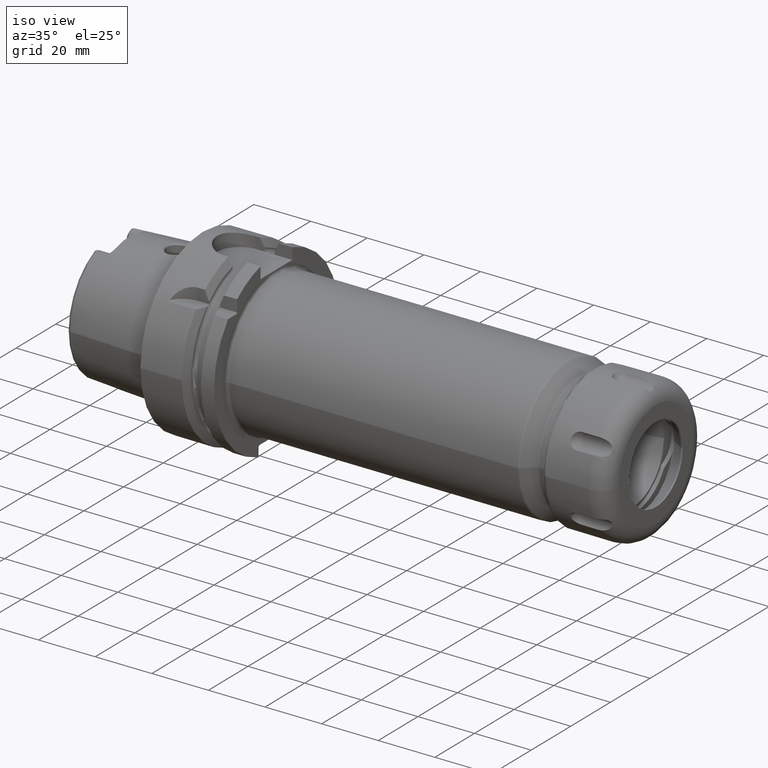
[diagram: clean part render]
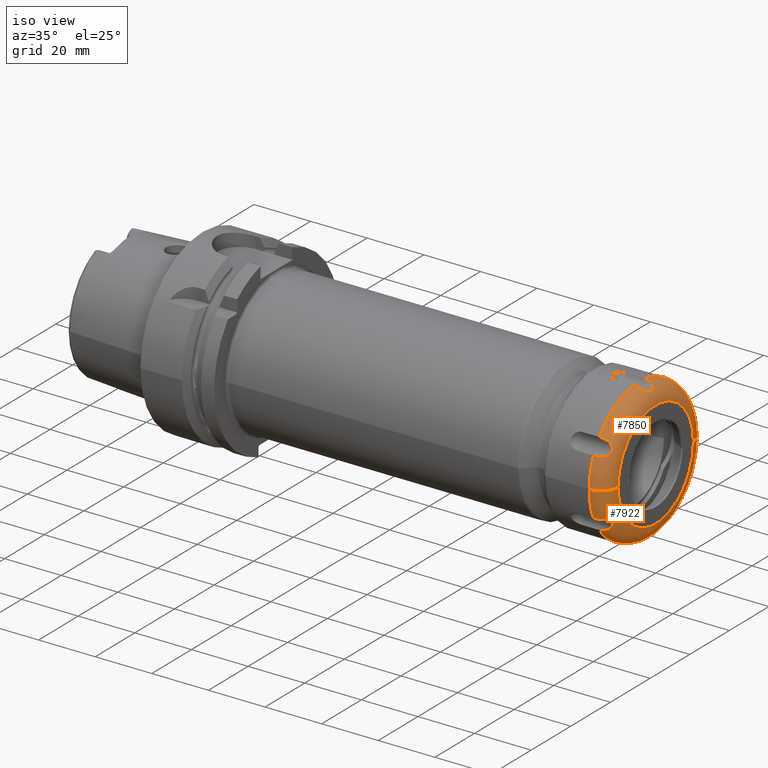
[diagram: same view with one multi-face feature highlighted, each face labeled with its STEP entity id]
A machine part, iso view. The highlighted faces form ONE feature: a constant-radius fillet chain: 2 tangent blend faces with common blend radius 6 mm. The faces share edges in the B-rep.
Their STEP definitions:
[1] entity #7922 (Torus):
#6672=CARTESIAN_POINT('',(1.65E1,1.9E1,0.E0));
#6673=DIRECTION('',(0.E0,0.E0,1.E0));
#6674=DIRECTION('',(1.E0,0.E0,0.E0));
#6675=AXIS2_PLACEMENT_3D('',#6672,#6673,#6674);
#6682=CARTESIAN_POINT('',(1.65E1,-1.9E1,0.E0));
#6683=DIRECTION('',(0.E0,0.E0,-1.E0));
#6684=DIRECTION('',(1.E0,0.E0,0.E0));
#6685=AXIS2_PLACEMENT_3D('',#6682,#6683,#6684);
#6779=CARTESIAN_POINT('',(2.25E1,0.E0,0.E0));
#6780=DIRECTION('',(-1.E0,0.E0,0.E0));
#6781=DIRECTION('',(0.E0,1.E0,0.E0));
#6782=AXIS2_PLACEMENT_3D('',#6779,#6780,#6781);
#6784=CARTESIAN_POINT('',(1.65E1,-2.290985507097E1,-1.000692463383E1));
#6785=CARTESIAN_POINT('',(1.694723275951E1,-2.290985507097E1,
-1.000692463383E1));
#6786=CARTESIAN_POINT('',(1.777273686532E1,-2.280971519412E1,
-9.990413347569E0));
#6787=CARTESIAN_POINT('',(1.880906674721E1,-2.245689672418E1,
-9.964959800532E0));
#6788=CARTESIAN_POINT('',(1.963305973257E1,-2.197150264562E1,
-1.000123426491E1));
#6789=CARTESIAN_POINT('',(2.024791780451E1,-2.142093508083E1,
-1.014493191317E1));
#6790=CARTESIAN_POINT('',(2.066023413901E1,-2.088267487226E1,
-1.040837966879E1));
#6791=CARTESIAN_POINT('',(2.090398272661E1,-2.041467150765E1,
-1.076644635425E1));
#6792=CARTESIAN_POINT('',(2.102168107365E1,-2.001959095990E1,
-1.121448387238E1));
#6793=CARTESIAN_POINT('',(2.102095170479E1,-1.971884963615E1,
-1.173687630992E1));
#6794=CARTESIAN_POINT('',(2.090187643971E1,-1.952968219076E1,
-1.230343942106E1));
#6795=CARTESIAN_POINT('',(2.065580889336E1,-1.945504186870E1,
-1.288887827158E1));
#6796=CARTESIAN_POINT('',(2.024233450265E1,-1.949742910517E1,
-1.348469612162E1));
#6797=CARTESIAN_POINT('',(1.962716159831E1,-1.964864834024E1,
-1.403114251544E1));
#6798=CARTESIAN_POINT('',(1.880413136422E1,-1.985945595620E1,
-1.446749790272E1));
#6799=CARTESIAN_POINT('',(1.776997637896E1,-2.005709122247E1,
-1.475891696091E1));
#6800=CARTESIAN_POINT('',(1.694623232374E1,-2.012117848214E1,
-1.483705417156E1));
#6801=CARTESIAN_POINT('',(1.65E1,-2.012117848214E1,-1.483705417156E1));
#6811=CARTESIAN_POINT('',(1.65E1,0.E0,0.E0));
#6812=DIRECTION('',(-1.E0,0.E0,0.E0));
#6813=DIRECTION('',(0.E0,-1.115470635532E-1,-9.937591522158E-1));
#6814=AXIS2_PLACEMENT_3D('',#6811,#6812,#6813);
#6824=CARTESIAN_POINT('',(1.65E1,0.E0,0.E0));
#6825=DIRECTION('',(-1.E0,0.E0,0.E0));
#6826=DIRECTION('',(0.E0,8.048471392856E-1,-5.934821668625E-1));
#6827=AXIS2_PLACEMENT_3D('',#6824,#6825,#6826);
#6837=CARTESIAN_POINT('',(1.65E1,0.E0,0.E0));
#6838=DIRECTION('',(-1.E0,0.E0,0.E0));
#6839=DIRECTION('',(0.E0,1.E0,0.E0));
#6840=AXIS2_PLACEMENT_3D('',#6837,#6838,#6839);
#6842=CARTESIAN_POINT('',(1.65E1,0.E0,0.E0));
#6843=DIRECTION('',(-1.E0,0.E0,0.E0));
#6844=DIRECTION('',(0.E0,-9.163942028388E-1,-4.002769853533E-1));
#6845=AXIS2_PLACEMENT_3D('',#6842,#6843,#6844);
#6874=CARTESIAN_POINT('',(1.65E1,-2.788676588829E0,-2.484397880539E1));
#6875=CARTESIAN_POINT('',(1.694694754131E1,-2.788676588829E0,
-2.484397880539E1));
#6876=CARTESIAN_POINT('',(1.777198007116E1,-2.752943205589E0,
-2.474911021453E1));
#6877=CARTESIAN_POINT('',(1.880771896592E1,-2.598811539784E0,
-2.443123011097E1));
#6878=CARTESIAN_POINT('',(1.963176734723E1,-2.325018135834E0,
-2.402923896364E1));
#6879=CARTESIAN_POINT('',(2.024696892663E1,-1.925560273791E0,
-2.362424975475E1));
#6880=CARTESIAN_POINT('',(2.065976563048E1,-1.428231673506E0,
-2.328953614277E1));
#6881=CARTESIAN_POINT('',(2.090378550494E1,-8.839996782707E-1,
-2.306304098867E1));
#6882=CARTESIAN_POINT('',(2.102164431311E1,-2.982640542416E-1,
-2.294475429858E1));
#6883=CARTESIAN_POINT('',(2.102100109149E1,3.046780383890E-1,
-2.294541333181E1));
#6884=CARTESIAN_POINT('',(2.090191025403E1,8.901354013608E-1,
-2.306488534693E1));
#6885=CARTESIAN_POINT('',(2.065592748228E1,1.434427559113E0,-2.329290182320E1));
#6886=CARTESIAN_POINT('',(2.024207145380E1,1.929692523839E0,-2.362783432082E1));
#6887=CARTESIAN_POINT('',(1.962632472305E1,2.327415036802E0,-2.403230056670E1));
#6888=CARTESIAN_POINT('',(1.880301628675E1,2.599720971572E0,-2.443296598778E1));
#6889=CARTESIAN_POINT('',(1.776936990180E1,2.753079224328E0,-2.474949496109E1));
#6890=CARTESIAN_POINT('',(1.694599708003E1,2.788676588829E0,-2.484397880539E1));
#6891=CARTESIAN_POINT('',(1.65E1,2.788676588829E0,-2.484397880539E1));
#6920=CARTESIAN_POINT('',(1.65E1,2.012117848214E1,-1.483705417156E1));
#6921=CARTESIAN_POINT('',(1.694708856491E1,2.012117848214E1,-1.483705417156E1));
#6922=CARTESIAN_POINT('',(1.777236287507E1,2.005685110167E1,-1.475863577517E1));
#6923=CARTESIAN_POINT('',(1.880853425709E1,1.985847743238E1,-1.446595958018E1));
#6924=CARTESIAN_POINT('',(1.963251451616E1,1.964722137305E1,-1.402762578400E1));
#6925=CARTESIAN_POINT('',(2.024747710348E1,1.949632115603E1,-1.347912009229E1));
#6926=CARTESIAN_POINT('',(2.066003894181E1,1.945524023858E1,-1.288111988149E1));
#6927=CARTESIAN_POINT('',(2.090387423337E1,1.953126705805E1,-1.229675839468E1));
#6928=CARTESIAN_POINT('',(2.102165433062E1,1.972169964466E1,-1.173050220689E1));
#6929=CARTESIAN_POINT('',(2.102098683850E1,2.002367806744E1,-1.120882785331E1));
#6930=CARTESIAN_POINT('',(2.090193711942E1,2.041975743808E1,-1.076165852656E1));
#6931=CARTESIAN_POINT('',(2.065607652062E1,2.088920438665E1,-1.040436975402E1));
#6932=CARTESIAN_POINT('',(2.024242898343E1,2.142675562221E1,-1.014290308878E1));
#6933=CARTESIAN_POINT('',(1.962683553388E1,2.197591842393E1,-1.000060537989E1));
#6934=CARTESIAN_POINT('',(1.880356314615E1,2.245919882776E1,-9.965050715289E0));
#6935=CARTESIAN_POINT('',(1.776963548014E1,2.281019487193E1,-9.990502811027E0));
#6936=CARTESIAN_POINT('',(1.694609518650E1,2.290985507097E1,-1.000692463383E1));
#6937=CARTESIAN_POINT('',(1.65E1,2.290985507097E1,-1.000692463383E1));
#7561=CARTESIAN_POINT('',(2.25E1,1.9E1,0.E0));
#7562=CARTESIAN_POINT('',(1.65E1,2.5E1,0.E0));
#7563=VERTEX_POINT('',#7561);
#7564=VERTEX_POINT('',#7562);
#7571=CARTESIAN_POINT('',(2.25E1,-1.9E1,0.E0));
#7572=CARTESIAN_POINT('',(1.65E1,-2.5E1,0.E0));
#7573=VERTEX_POINT('',#7571);
#7574=VERTEX_POINT('',#7572);
#7575=CARTESIAN_POINT('',(1.65E1,-2.788676588829E0,-2.484397880539E1));
#7577=VERTEX_POINT('',#7575);
#7579=CARTESIAN_POINT('',(1.65E1,2.788676588829E0,-2.484397880539E1));
#7581=VERTEX_POINT('',#7579);
#7583=CARTESIAN_POINT('',(1.65E1,2.012117848214E1,-1.483705417156E1));
#7585=VERTEX_POINT('',#7583);
#7587=CARTESIAN_POINT('',(1.65E1,2.290985507097E1,-1.000692463383E1));
#7589=VERTEX_POINT('',#7587);
#7615=CARTESIAN_POINT('',(1.65E1,-2.290985507097E1,-1.000692463383E1));
#7617=VERTEX_POINT('',#7615);
#7619=CARTESIAN_POINT('',(1.65E1,-2.012117848214E1,-1.483705417156E1));
#7621=VERTEX_POINT('',#7619);
#7897=CARTESIAN_POINT('',(1.65E1,0.E0,0.E0));
#7898=DIRECTION('',(-1.E0,0.E0,0.E0));
#7899=DIRECTION('',(0.E0,1.E0,0.E0));
#7900=AXIS2_PLACEMENT_3D('',#7897,#7898,#7899);
#7901=TOROIDAL_SURFACE('',#7900,1.9E1,6.E0);
#7903=ORIENTED_EDGE('',*,*,#7902,.F.);
#7905=ORIENTED_EDGE('',*,*,#7904,.T.);
#7906=ORIENTED_EDGE('',*,*,#7845,.F.);
#7908=ORIENTED_EDGE('',*,*,#7907,.F.);
#7909=ORIENTED_EDGE('',*,*,#7841,.T.);
#7911=ORIENTED_EDGE('',*,*,#7910,.T.);
#7913=ORIENTED_EDGE('',*,*,#7912,.F.);
#7915=ORIENTED_EDGE('',*,*,#7914,.T.);
#7917=ORIENTED_EDGE('',*,*,#7916,.F.);
#7919=ORIENTED_EDGE('',*,*,#7918,.T.);
#7920=EDGE_LOOP('',(#7903,#7905,#7906,#7908,#7909,#7911,#7913,#7915,#7917,
#7919));
#7921=FACE_OUTER_BOUND('',#7920,.F.);
#7922=ADVANCED_FACE('',(#7921),#7901,.T.);
#6676=CIRCLE('',#6675,6.E0);
#6686=CIRCLE('',#6685,6.E0);
#6783=CIRCLE('',#6782,1.9E1);
#6802=B_SPLINE_CURVE_WITH_KNOTS('',3,(#6784,#6785,#6786,#6787,#6788,#6789,#6790,
#6791,#6792,#6793,#6794,#6795,#6796,#6797,#6798,#6799,#6800,#6801),
.UNSPECIFIED.,.F.,.F.,(4,1,1,1,1,1,1,1,1,1,1,1,1,1,1,4),(0.E0,6.666666666667E-2,
1.333333333333E-1,2.E-1,2.666666666667E-1,3.333333333333E-1,4.E-1,
4.666666666667E-1,5.333333333333E-1,6.E-1,6.666666666667E-1,7.333333333333E-1,
8.E-1,8.666666666667E-1,9.333333333333E-1,1.E0),.UNSPECIFIED.);
#6815=CIRCLE('',#6814,2.5E1);
#6828=CIRCLE('',#6827,2.5E1);
#6841=CIRCLE('',#6840,2.5E1);
#6846=CIRCLE('',#6845,2.5E1);
#6892=B_SPLINE_CURVE_WITH_KNOTS('',3,(#6874,#6875,#6876,#6877,#6878,#6879,#6880,
#6881,#6882,#6883,#6884,#6885,#6886,#6887,#6888,#6889,#6890,#6891),
.UNSPECIFIED.,.F.,.F.,(4,1,1,1,1,1,1,1,1,1,1,1,1,1,1,4),(0.E0,6.666666666667E-2,
1.333333333333E-1,2.E-1,2.666666666667E-1,3.333333333333E-1,4.E-1,
4.666666666667E-1,5.333333333333E-1,6.E-1,6.666666666667E-1,7.333333333333E-1,
8.E-1,8.666666666667E-1,9.333333333333E-1,1.E0),.UNSPECIFIED.);
#6938=B_SPLINE_CURVE_WITH_KNOTS('',3,(#6920,#6921,#6922,#6923,#6924,#6925,#6926,
#6927,#6928,#6929,#6930,#6931,#6932,#6933,#6934,#6935,#6936,#6937),
.UNSPECIFIED.,.F.,.F.,(4,1,1,1,1,1,1,1,1,1,1,1,1,1,1,4),(0.E0,6.666666666667E-2,
1.333333333333E-1,2.E-1,2.666666666667E-1,3.333333333333E-1,4.E-1,
4.666666666667E-1,5.333333333333E-1,6.E-1,6.666666666667E-1,7.333333333333E-1,
8.E-1,8.666666666667E-1,9.333333333333E-1,1.E0),.UNSPECIFIED.);
#7841=EDGE_CURVE('',#7563,#7564,#6676,.T.);
#7845=EDGE_CURVE('',#7573,#7574,#6686,.T.);
#7902=EDGE_CURVE('',#7617,#7621,#6802,.T.);
#7904=EDGE_CURVE('',#7617,#7574,#6846,.T.);
#7907=EDGE_CURVE('',#7563,#7573,#6783,.T.);
#7910=EDGE_CURVE('',#7564,#7589,#6841,.T.);
#7912=EDGE_CURVE('',#7585,#7589,#6938,.T.);
#7914=EDGE_CURVE('',#7585,#7581,#6828,.T.);
#7916=EDGE_CURVE('',#7577,#7581,#6892,.T.);
#7918=EDGE_CURVE('',#7577,#7621,#6815,.T.);
[2] entity #7850 (Torus):
#6609=CARTESIAN_POINT('',(1.65E1,0.E0,0.E0));
#6610=DIRECTION('',(1.E0,0.E0,0.E0));
#6611=DIRECTION('',(0.E0,-9.163942028388E-1,4.002769853533E-1));
#6612=AXIS2_PLACEMENT_3D('',#6609,#6610,#6611);
#6622=CARTESIAN_POINT('',(1.65E1,0.E0,0.E0));
#6623=DIRECTION('',(1.E0,0.E0,0.E0));
#6624=DIRECTION('',(0.E0,1.E0,0.E0));
#6625=AXIS2_PLACEMENT_3D('',#6622,#6623,#6624);
#6635=CARTESIAN_POINT('',(1.65E1,0.E0,0.E0));
#6636=DIRECTION('',(1.E0,0.E0,0.E0));
#6637=DIRECTION('',(0.E0,8.048471392856E-1,5.934821668625E-1));
#6638=AXIS2_PLACEMENT_3D('',#6635,#6636,#6637);
#6648=CARTESIAN_POINT('',(1.65E1,0.E0,0.E0));
#6649=DIRECTION('',(1.E0,0.E0,0.E0));
#6650=DIRECTION('',(0.E0,-1.115470635532E-1,9.937591522158E-1));
#6651=AXIS2_PLACEMENT_3D('',#6648,#6649,#6650);
#6653=CARTESIAN_POINT('',(1.65E1,-2.012117848214E1,1.483705417156E1));
#6654=CARTESIAN_POINT('',(1.694720373027E1,-2.012117848214E1,1.483705417156E1));
#6655=CARTESIAN_POINT('',(1.777266753503E1,-2.005682040911E1,1.475860131025E1));
#6656=CARTESIAN_POINT('',(1.880909079501E1,-1.985835199326E1,1.446575721201E1));
#6657=CARTESIAN_POINT('',(1.963302422172E1,-1.964708392773E1,1.402727431065E1));
#6658=CARTESIAN_POINT('',(2.024782154650E1,-1.949625628860E1,1.347871288199E1));
#6659=CARTESIAN_POINT('',(2.066017174164E1,-1.945525930865E1,1.288084481345E1));
#6660=CARTESIAN_POINT('',(2.090390509298E1,-1.953130570434E1,1.229662971326E1));
#6661=CARTESIAN_POINT('',(2.102164448056E1,-1.972170667578E1,1.173050989439E1));
#6662=CARTESIAN_POINT('',(2.102099245026E1,-2.002359896792E1,1.120895302290E1));
#6663=CARTESIAN_POINT('',(2.090201171385E1,-2.041955789837E1,1.076185649719E1));
#6664=CARTESIAN_POINT('',(2.065629645088E1,-2.088884100809E1,1.040460485221E1));
#6665=CARTESIAN_POINT('',(2.024287754272E1,-2.142626397909E1,1.014308533842E1));
#6666=CARTESIAN_POINT('',(1.962744243890E1,-2.197547901245E1,1.000067028405E1));
#6667=CARTESIAN_POINT('',(1.880419347336E1,-2.245893266711E1,9.965041592392E0));
#6668=CARTESIAN_POINT('',(1.776995325185E1,-2.281015024283E1,9.990493157919E0));
#6669=CARTESIAN_POINT('',(1.694621273544E1,-2.290985507097E1,1.000692463383E1));
#6670=CARTESIAN_POINT('',(1.65E1,-2.290985507097E1,1.000692463383E1));
#6672=CARTESIAN_POINT('',(1.65E1,1.9E1,0.E0));
#6673=DIRECTION('',(0.E0,0.E0,1.E0));
#6674=DIRECTION('',(1.E0,0.E0,0.E0));
#6675=AXIS2_PLACEMENT_3D('',#6672,#6673,#6674);
#6677=CARTESIAN_POINT('',(2.25E1,0.E0,0.E0));
#6678=DIRECTION('',(1.E0,0.E0,0.E0));
#6679=DIRECTION('',(0.E0,1.E0,0.E0));
#6680=AXIS2_PLACEMENT_3D('',#6677,#6678,#6679);
#6682=CARTESIAN_POINT('',(1.65E1,-1.9E1,0.E0));
#6683=DIRECTION('',(0.E0,0.E0,-1.E0));
#6684=DIRECTION('',(1.E0,0.E0,0.E0));
#6685=AXIS2_PLACEMENT_3D('',#6682,#6683,#6684);
#6687=CARTESIAN_POINT('',(1.65E1,2.788676588829E0,2.484397880539E1));
#6688=CARTESIAN_POINT('',(1.694706257007E1,2.788676588829E0,2.484397880539E1));
#6689=CARTESIAN_POINT('',(1.777228444612E1,2.752928704125E0,2.474906643897E1));
#6690=CARTESIAN_POINT('',(1.880827481800E1,2.598699242378E0,2.443102066380E1));
#6691=CARTESIAN_POINT('',(1.963227743652E1,2.324782556568E0,2.402894412950E1));
#6692=CARTESIAN_POINT('',(2.024731428844E1,1.925239554784E0,2.362398936830E1));
#6693=CARTESIAN_POINT('',(2.065989941214E1,1.427982484067E0,2.328941427700E1));
#6694=CARTESIAN_POINT('',(2.090381678624E1,8.838675461664E-1,2.306300969865E1));
#6695=CARTESIAN_POINT('',(2.102163461927E1,2.982656604448E-1,2.294476407209E1));
#6696=CARTESIAN_POINT('',(2.102100654642E1,-3.045316302245E-1,
2.294540757610E1));
#6697=CARTESIAN_POINT('',(2.090198438464E1,-8.898656739259E-1,
2.306481197708E1));
#6698=CARTESIAN_POINT('',(2.065614663489E1,-1.434043662309E0,2.329270537285E1));
#6699=CARTESIAN_POINT('',(2.024251867477E1,-1.929290235210E0,2.362750071037E1));
#6700=CARTESIAN_POINT('',(1.962692984992E1,-2.327140057901E0,2.403195356973E1));
#6701=CARTESIAN_POINT('',(1.880364472632E1,-2.599596225315E0,2.443273169938E1));
#6702=CARTESIAN_POINT('',(1.776968653786E1,-2.753065328423E0,2.474945166371E1));
#6703=CARTESIAN_POINT('',(1.694611419548E1,-2.788676588829E0,2.484397880539E1));
#6704=CARTESIAN_POINT('',(1.65E1,-2.788676588829E0,2.484397880539E1));
#6733=CARTESIAN_POINT('',(1.65E1,2.290985507097E1,1.000692463383E1));
#6734=CARTESIAN_POINT('',(1.694711635440E1,2.290985507097E1,1.000692463383E1));
#6735=CARTESIAN_POINT('',(1.777242884702E1,2.280976096644E1,9.990422790624E0));
#6736=CARTESIAN_POINT('',(1.880850515959E1,2.245713680721E1,9.964967335215E0));
#6737=CARTESIAN_POINT('',(1.963254350016E1,2.197188030101E1,1.000117694965E1));
#6738=CARTESIAN_POINT('',(2.024756704196E1,2.142132687855E1,1.014478213800E1));
#6739=CARTESIAN_POINT('',(2.066009639963E1,2.088291124960E1,1.040822093993E1));
#6740=CARTESIAN_POINT('',(2.090394881966E1,2.041477096620E1,1.076634178110E1));
#6741=CARTESIAN_POINT('',(2.102168972468E1,2.001958751800E1,1.121447243020E1));
#6742=CARTESIAN_POINT('',(2.102094729980E1,1.971878602381E1,1.173699585960E1));
#6743=CARTESIAN_POINT('',(2.090180561230E1,1.952961370210E1,1.230369823144E1));
#6744=CARTESIAN_POINT('',(2.065559758751E1,1.945502044943E1,1.288929451673E1));
#6745=CARTESIAN_POINT('',(2.024189542934E1,1.949751504001E1,1.348520271026E1));
#6746=CARTESIAN_POINT('',(1.962656395641E1,1.964880936638E1,1.403154943432E1));
#6747=CARTESIAN_POINT('',(1.880350773528E1,1.985959547964E1,1.446772162208E1));
#6748=CARTESIAN_POINT('',(1.776966105714E1,2.005712170743E1,1.475895057900E1));
#6749=CARTESIAN_POINT('',(1.694611552512E1,2.012117848214E1,1.483705417156E1));
#6750=CARTESIAN_POINT('',(1.65E1,2.012117848214E1,1.483705417156E1));
#7561=CARTESIAN_POINT('',(2.25E1,1.9E1,0.E0));
#7562=CARTESIAN_POINT('',(1.65E1,2.5E1,0.E0));
#7563=VERTEX_POINT('',#7561);
#7564=VERTEX_POINT('',#7562);
#7571=CARTESIAN_POINT('',(2.25E1,-1.9E1,0.E0));
#7572=CARTESIAN_POINT('',(1.65E1,-2.5E1,0.E0));
#7573=VERTEX_POINT('',#7571);
#7574=VERTEX_POINT('',#7572);
#7591=CARTESIAN_POINT('',(1.65E1,2.290985507097E1,1.000692463383E1));
#7593=VERTEX_POINT('',#7591);
#7595=CARTESIAN_POINT('',(1.65E1,2.012117848214E1,1.483705417156E1));
#7597=VERTEX_POINT('',#7595);
#7599=CARTESIAN_POINT('',(1.65E1,2.788676588829E0,2.484397880539E1));
#7601=VERTEX_POINT('',#7599);
#7603=CARTESIAN_POINT('',(1.65E1,-2.788676588829E0,2.484397880539E1));
#7605=VERTEX_POINT('',#7603);
#7607=CARTESIAN_POINT('',(1.65E1,-2.012117848214E1,1.483705417156E1));
#7609=VERTEX_POINT('',#7607);
#7611=CARTESIAN_POINT('',(1.65E1,-2.290985507097E1,1.000692463383E1));
#7613=VERTEX_POINT('',#7611);
#7828=CARTESIAN_POINT('',(1.65E1,0.E0,0.E0));
#7829=DIRECTION('',(-1.E0,0.E0,0.E0));
#7830=DIRECTION('',(0.E0,1.E0,0.E0));
#7831=AXIS2_PLACEMENT_3D('',#7828,#7829,#7830);
#7832=TOROIDAL_SURFACE('',#7831,1.9E1,6.E0);
#7833=ORIENTED_EDGE('',*,*,#7819,.F.);
#7834=ORIENTED_EDGE('',*,*,#7809,.F.);
#7836=ORIENTED_EDGE('',*,*,#7835,.F.);
#7837=ORIENTED_EDGE('',*,*,#7801,.F.);
#7839=ORIENTED_EDGE('',*,*,#7838,.F.);
#7840=ORIENTED_EDGE('',*,*,#7793,.F.);
#7842=ORIENTED_EDGE('',*,*,#7841,.F.);
#7844=ORIENTED_EDGE('',*,*,#7843,.T.);
#7846=ORIENTED_EDGE('',*,*,#7845,.T.);
#7847=ORIENTED_EDGE('',*,*,#7786,.F.);
#7848=EDGE_LOOP('',(#7833,#7834,#7836,#7837,#7839,#7840,#7842,#7844,#7846,
#7847));
#7849=FACE_OUTER_BOUND('',#7848,.F.);
#7850=ADVANCED_FACE('',(#7849),#7832,.T.);
#6613=CIRCLE('',#6612,2.5E1);
#6626=CIRCLE('',#6625,2.5E1);
#6639=CIRCLE('',#6638,2.5E1);
#6652=CIRCLE('',#6651,2.5E1);
#6671=B_SPLINE_CURVE_WITH_KNOTS('',3,(#6653,#6654,#6655,#6656,#6657,#6658,#6659,
#6660,#6661,#6662,#6663,#6664,#6665,#6666,#6667,#6668,#6669,#6670),
.UNSPECIFIED.,.F.,.F.,(4,1,1,1,1,1,1,1,1,1,1,1,1,1,1,4),(0.E0,6.666666666667E-2,
1.333333333333E-1,2.E-1,2.666666666667E-1,3.333333333333E-1,4.E-1,
4.666666666667E-1,5.333333333333E-1,6.E-1,6.666666666667E-1,7.333333333333E-1,
8.E-1,8.666666666667E-1,9.333333333333E-1,1.E0),.UNSPECIFIED.);
#6676=CIRCLE('',#6675,6.E0);
#6681=CIRCLE('',#6680,1.9E1);
#6686=CIRCLE('',#6685,6.E0);
#6705=B_SPLINE_CURVE_WITH_KNOTS('',3,(#6687,#6688,#6689,#6690,#6691,#6692,#6693,
#6694,#6695,#6696,#6697,#6698,#6699,#6700,#6701,#6702,#6703,#6704),
.UNSPECIFIED.,.F.,.F.,(4,1,1,1,1,1,1,1,1,1,1,1,1,1,1,4),(0.E0,6.666666666667E-2,
1.333333333333E-1,2.E-1,2.666666666667E-1,3.333333333333E-1,4.E-1,
4.666666666667E-1,5.333333333333E-1,6.E-1,6.666666666667E-1,7.333333333333E-1,
8.E-1,8.666666666667E-1,9.333333333333E-1,1.E0),.UNSPECIFIED.);
#6751=B_SPLINE_CURVE_WITH_KNOTS('',3,(#6733,#6734,#6735,#6736,#6737,#6738,#6739,
#6740,#6741,#6742,#6743,#6744,#6745,#6746,#6747,#6748,#6749,#6750),
.UNSPECIFIED.,.F.,.F.,(4,1,1,1,1,1,1,1,1,1,1,1,1,1,1,4),(0.E0,6.666666666667E-2,
1.333333333333E-1,2.E-1,2.666666666667E-1,3.333333333333E-1,4.E-1,
4.666666666667E-1,5.333333333333E-1,6.E-1,6.666666666667E-1,7.333333333333E-1,
8.E-1,8.666666666667E-1,9.333333333333E-1,1.E0),.UNSPECIFIED.);
#7786=EDGE_CURVE('',#7613,#7574,#6613,.T.);
#7793=EDGE_CURVE('',#7564,#7593,#6626,.T.);
#7801=EDGE_CURVE('',#7597,#7601,#6639,.T.);
#7809=EDGE_CURVE('',#7605,#7609,#6652,.T.);
#7819=EDGE_CURVE('',#7609,#7613,#6671,.T.);
#7835=EDGE_CURVE('',#7601,#7605,#6705,.T.);
#7838=EDGE_CURVE('',#7593,#7597,#6751,.T.);
#7841=EDGE_CURVE('',#7563,#7564,#6676,.T.);
#7843=EDGE_CURVE('',#7563,#7573,#6681,.T.);
#7845=EDGE_CURVE('',#7573,#7574,#6686,.T.);